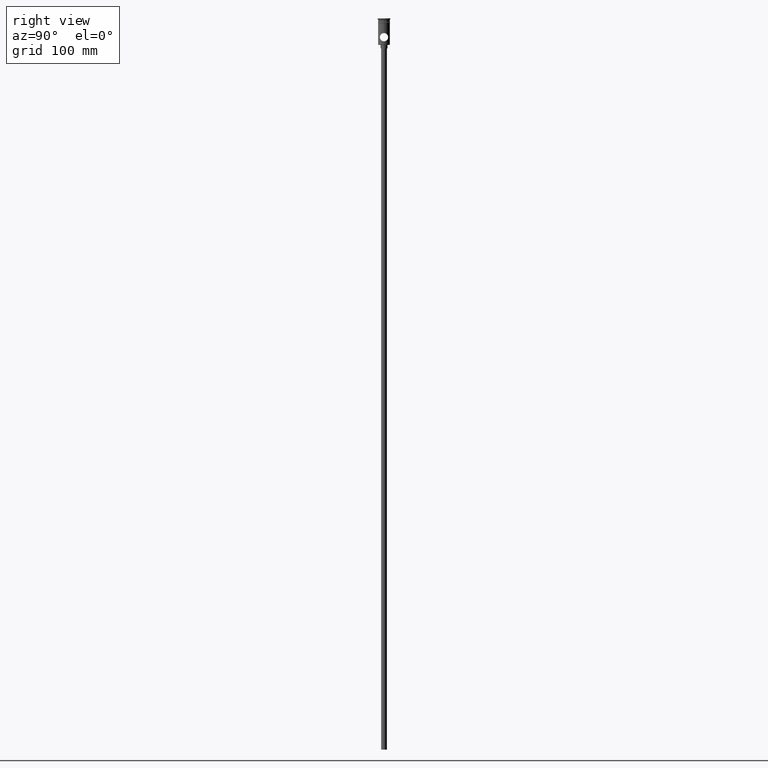
[diagram: clean part render]
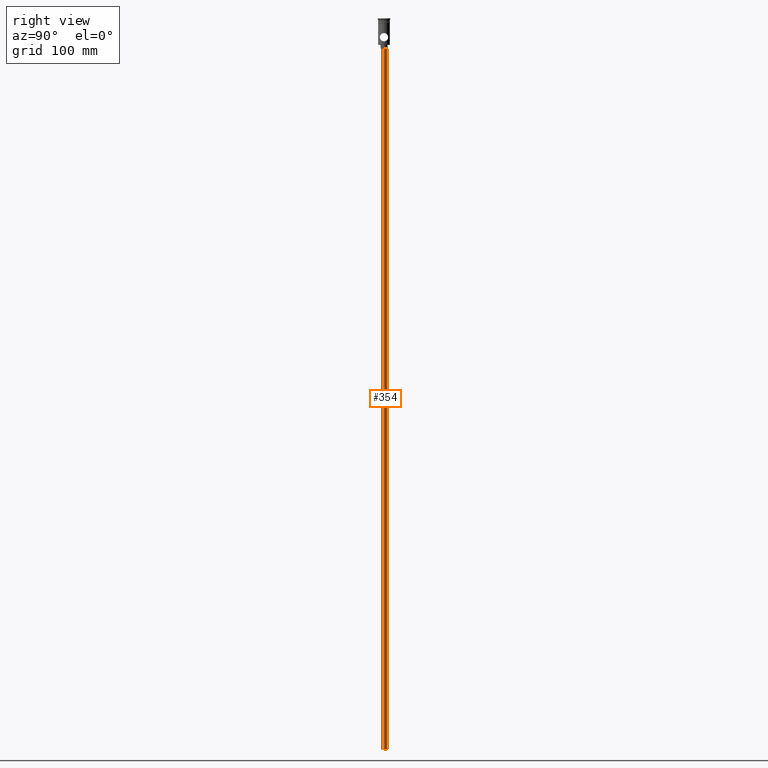
[diagram: same view with one face highlighted and labeled with its STEP entity id]
A machine part, right view. The second image highlights one B-rep face of the part: STEP entity #354.
In plain terms, the highlighted cylindrical surface (edge-blend (fillet) strip) has radius 2.5 mm, axis along (-0, -0, 1).
Its self-contained STEP definition (entity closure, byte-faithful):
#5 = DIRECTION ( 'NONE',  ( 0.000000000000000000, 0.000000000000000000, -1.000000000000000000 ) ) ;
#63 = CARTESIAN_POINT ( 'NONE',  ( 2.500000000000000000, 0.000000000000000000, -25.50000000000000000 ) ) ;
#77 = DIRECTION ( 'NONE',  ( -0.000000000000000000, -0.000000000000000000, 1.000000000000000000 ) ) ;
#175 = LINE ( 'NONE', #644, #694 ) ;
#197 = VERTEX_POINT ( 'NONE', #990 ) ;
#205 = EDGE_LOOP ( 'NONE', ( #431, #233, #563, #1320 ) ) ;
#212 = FACE_OUTER_BOUND ( 'NONE', #205, .T. ) ;
#233 = ORIENTED_EDGE ( 'NONE', *, *, #1190, .T. ) ;
#285 = DIRECTION ( 'NONE',  ( -0.000000000000000000, -0.000000000000000000, 1.000000000000000000 ) ) ;
#289 = CARTESIAN_POINT ( 'NONE',  ( 2.500000000000000000, 0.000000000000000000, -622.4999999999998863 ) ) ;
#294 = VERTEX_POINT ( 'NONE', #912 ) ;
#331 = DIRECTION ( 'NONE',  ( -0.000000000000000000, -0.000000000000000000, 1.000000000000000000 ) ) ;
#354 = ADVANCED_FACE ( 'NONE', ( #212 ), #1321, .T. ) ;
#415 = AXIS2_PLACEMENT_3D ( 'NONE', #576, #5, #1383 ) ;
#423 = EDGE_CURVE ( 'NONE', #197, #889, #462, .T. ) ;
#431 = ORIENTED_EDGE ( 'NONE', *, *, #1072, .F. ) ;
#462 = CIRCLE ( 'NONE', #415, 2.500000000000000000 ) ;
#563 = ORIENTED_EDGE ( 'NONE', *, *, #423, .T. ) ;
#567 = VERTEX_POINT ( 'NONE', #289 ) ;
#576 = CARTESIAN_POINT ( 'NONE',  ( 0.000000000000000000, 0.000000000000000000, -25.50000000000000000 ) ) ;
#644 = CARTESIAN_POINT ( 'NONE',  ( -2.500000000000000000, 3.061616997868383141E-16, -622.4999999999998863 ) ) ;
#681 = DIRECTION ( 'NONE',  ( 0.000000000000000000, 0.000000000000000000, -1.000000000000000000 ) ) ;
#694 = VECTOR ( 'NONE', #77, 1000.000000000000000 ) ;
#781 = CARTESIAN_POINT ( 'NONE',  ( 0.000000000000000000, 0.000000000000000000, -622.4999999999998863 ) ) ;
#784 = AXIS2_PLACEMENT_3D ( 'NONE', #1230, #331, #1209 ) ;
#889 = VERTEX_POINT ( 'NONE', #63 ) ;
#912 = CARTESIAN_POINT ( 'NONE',  ( -2.500000000000000000, 3.061616997868383141E-16, -622.4999999999998863 ) ) ;
#930 = VECTOR ( 'NONE', #285, 1000.000000000000000 ) ;
#990 = CARTESIAN_POINT ( 'NONE',  ( -2.500000000000000000, 3.061616997868383141E-16, -25.50000000000000000 ) ) ;
#1072 = EDGE_CURVE ( 'NONE', #294, #567, #1256, .T. ) ;
#1075 = AXIS2_PLACEMENT_3D ( 'NONE', #781, #681, #1457 ) ;
#1189 = LINE ( 'NONE', #1287, #930 ) ;
#1190 = EDGE_CURVE ( 'NONE', #294, #197, #175, .T. ) ;
#1204 = EDGE_CURVE ( 'NONE', #567, #889, #1189, .T. ) ;
#1209 = DIRECTION ( 'NONE',  ( 1.000000000000000000, 0.000000000000000000, 0.000000000000000000 ) ) ;
#1230 = CARTESIAN_POINT ( 'NONE',  ( 0.000000000000000000, 0.000000000000000000, -622.4999999999998863 ) ) ;
#1256 = CIRCLE ( 'NONE', #1075, 2.500000000000000000 ) ;
#1287 = CARTESIAN_POINT ( 'NONE',  ( 2.500000000000000000, 0.000000000000000000, -622.4999999999998863 ) ) ;
#1320 = ORIENTED_EDGE ( 'NONE', *, *, #1204, .F. ) ;
#1321 = CYLINDRICAL_SURFACE ( 'NONE', #784, 2.500000000000000000 ) ;
#1383 = DIRECTION ( 'NONE',  ( -1.000000000000000000, 0.000000000000000000, 0.000000000000000000 ) ) ;
#1457 = DIRECTION ( 'NONE',  ( -1.000000000000000000, 0.000000000000000000, 0.000000000000000000 ) ) ;